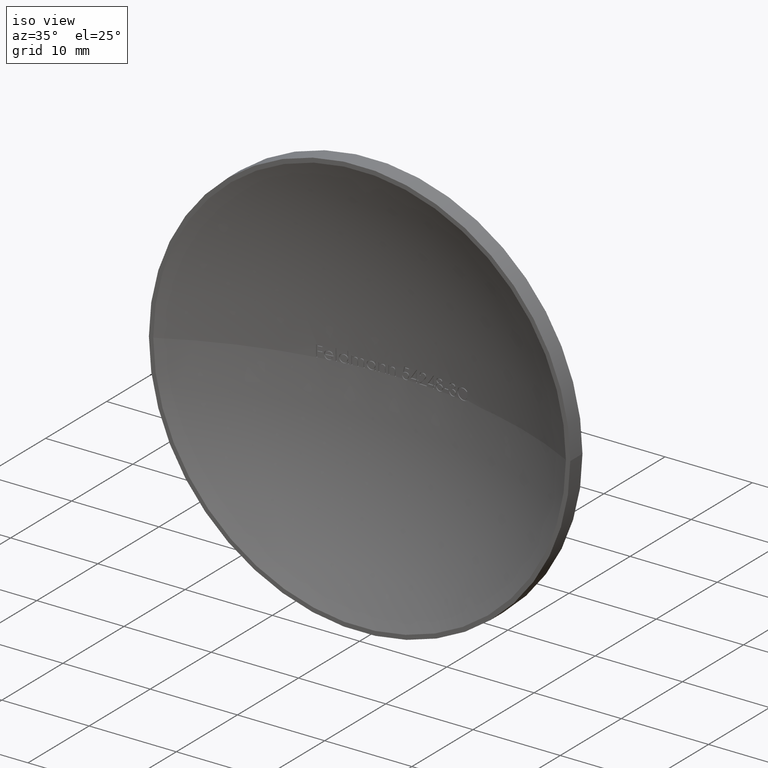
[diagram: clean part render]
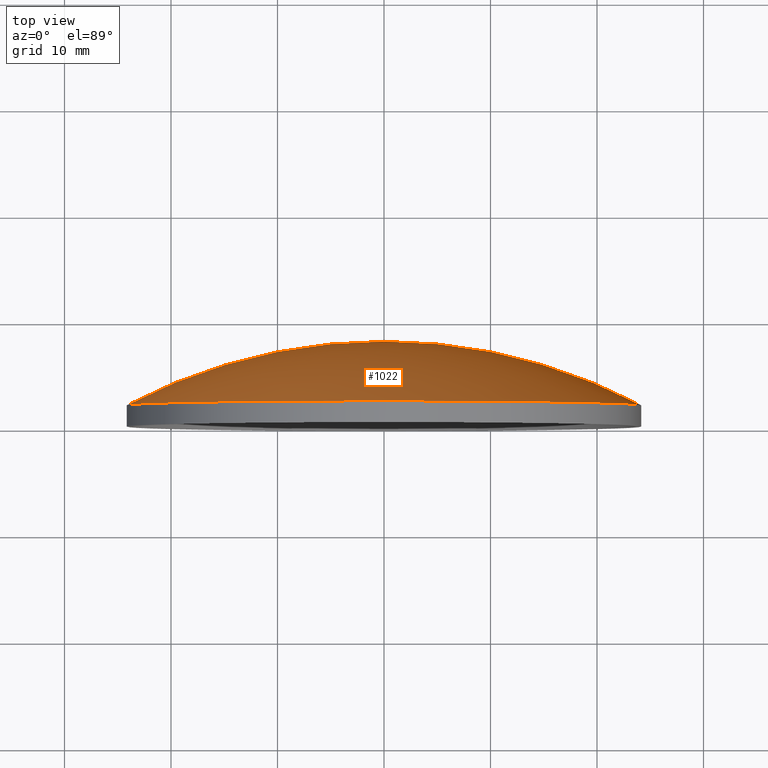
[diagram: tour spotlight — one face highlighted and labeled with its STEP entity id]
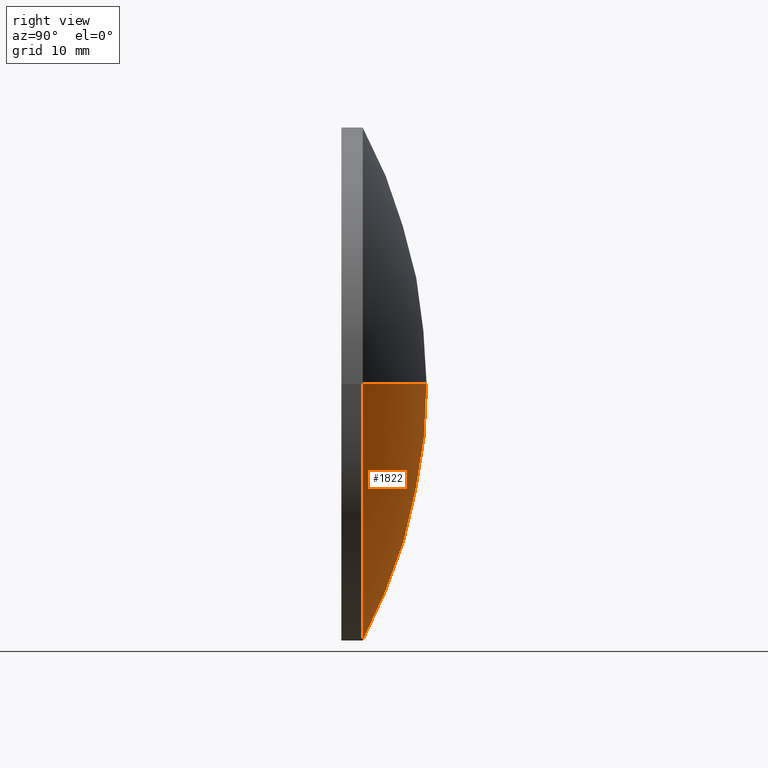
[diagram: tour spotlight — one face highlighted and labeled with its STEP entity id]
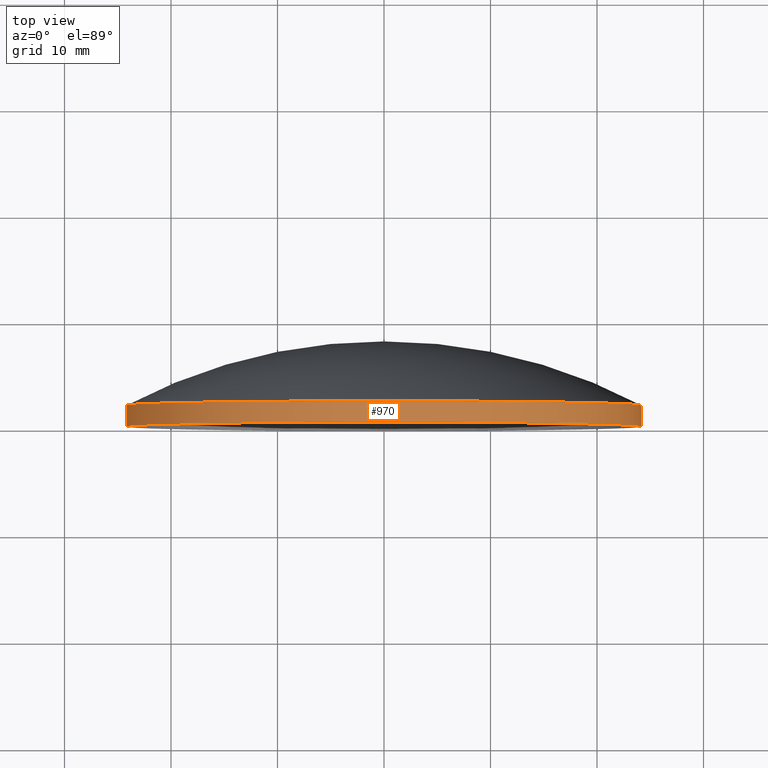
[diagram: tour spotlight — one face highlighted and labeled with its STEP entity id]
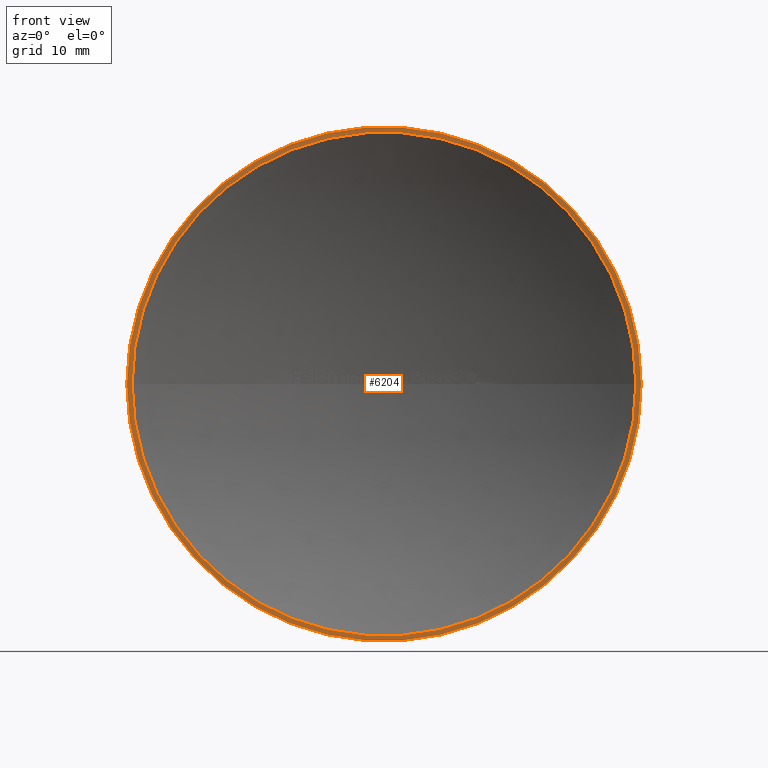
[diagram: tour spotlight — one face highlighted and labeled with its STEP entity id]
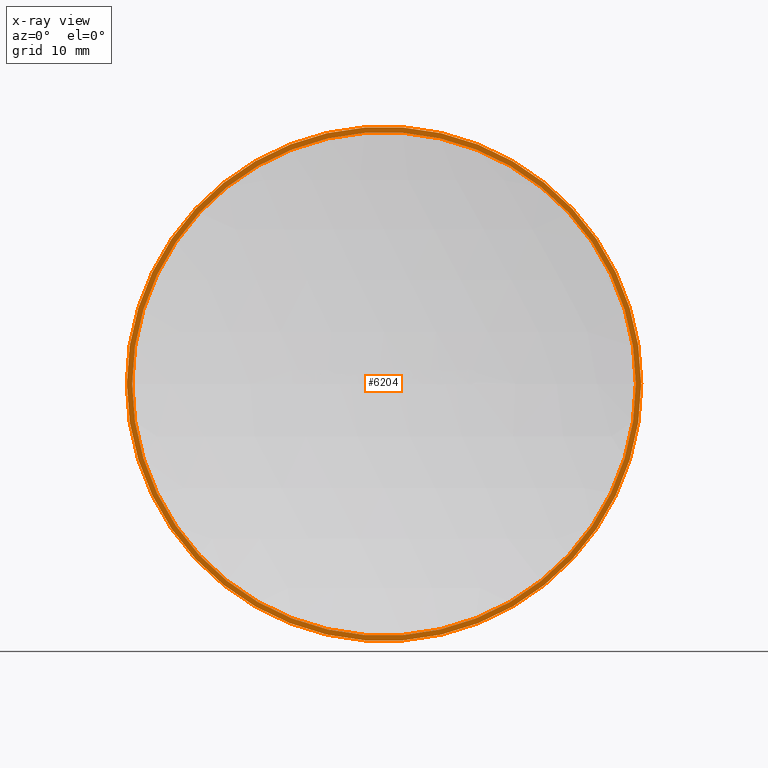
[diagram: x-ray of the same camera — body ghosted, this tour face saturated]
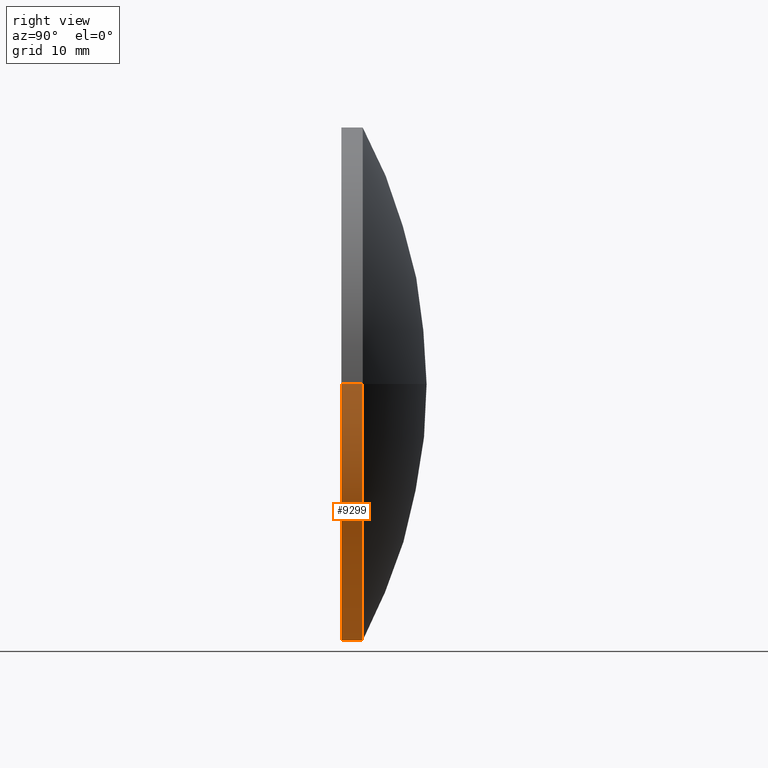
[diagram: tour spotlight — one face highlighted and labeled with its STEP entity id]
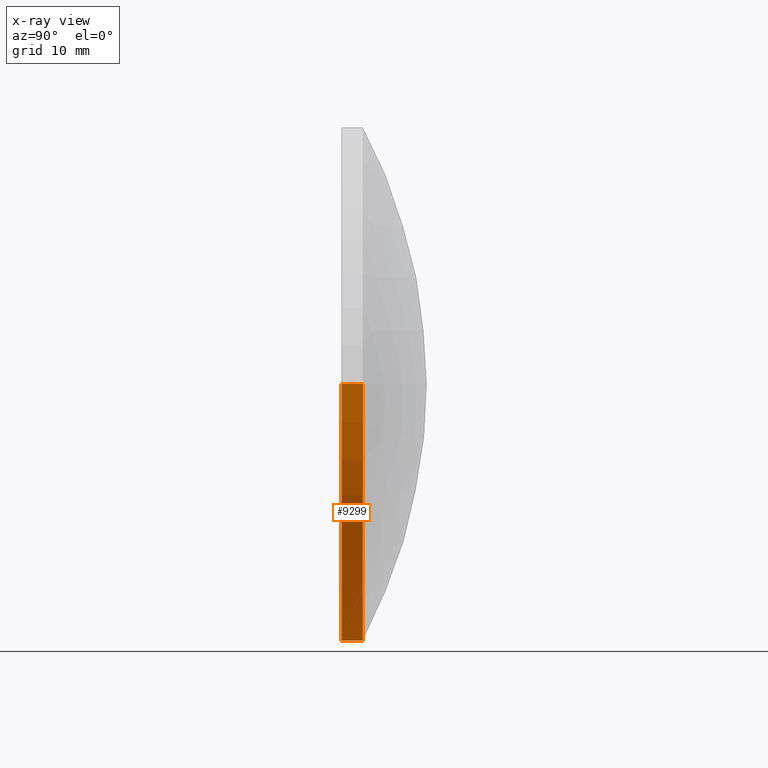
[diagram: x-ray of the same camera — body ghosted, this tour face saturated]
A machine part: a face-by-face anatomy tour. The part has 246 B-rep faces; the first image is the clean iso view, then the 5 largest visible faces are spotlighted one at a time (largest first), each with its STEP entity span.

Face 1 — top view, entity #1022. In plain terms, the highlighted spherical surface has radius 51.6019 mm.
Definition (entity closure, byte-faithful):
#657 = VERTEX_POINT ( 'NONE', #5490 ) ;
#696 = CARTESIAN_POINT ( 'NONE',  ( 1.463868500272714700E-014, -43.60187499999997800, 0.0000000000000000000 ) ) ;
#747 = CIRCLE ( 'NONE', #12458, 51.60187499999996400 ) ;
#1022 = ADVANCED_FACE ( 'NONE', ( #2465 ), #2627, .T. ) ;
#2031 = DIRECTION ( 'NONE',  ( 0.0000000000000000000, 0.0000000000000000000, -1.000000000000000000 ) ) ;
#2076 = EDGE_LOOP ( 'NONE', ( #2993, #6109, #4486 ) ) ;
#2465 = FACE_OUTER_BOUND ( 'NONE', #2076, .T. ) ;
#2627 = SPHERICAL_SURFACE ( 'NONE', #4551, 51.60187499999996400 ) ;
#2898 = DIRECTION ( 'NONE',  ( -7.319342501363578300E-015, -1.000000000000000000, -0.0000000000000000000 ) ) ;
#2988 = DIRECTION ( 'NONE',  ( 1.000000000000000000, -7.261369297355776100E-015, 0.0000000000000000000 ) ) ;
#2993 = ORIENTED_EDGE ( 'NONE', *, *, #5175, .F. ) ;
#3506 = CIRCLE ( 'NONE', #7428, 51.60187499999996400 ) ;
#4032 = CARTESIAN_POINT ( 'NONE',  ( -2.927737000545303800E-014, 2.000000000000164800, 0.0000000000000000000 ) ) ;
#4486 = ORIENTED_EDGE ( 'NONE', *, *, #5985, .F. ) ;
#4551 = AXIS2_PLACEMENT_3D ( 'NONE', #10020, #11043, #2988 ) ;
#4948 = CARTESIAN_POINT ( 'NONE',  ( 3.954901853927152000E-013, 7.999999999999986700, 0.0000000000000000000 ) ) ;
#5175 = EDGE_CURVE ( 'NONE', #7676, #6218, #3506, .T. ) ;
#5293 = CARTESIAN_POINT ( 'NONE',  ( 24.15000000000000600, 1.999999999999988000, 0.0000000000000000000 ) ) ;
#5490 = CARTESIAN_POINT ( 'NONE',  ( -24.15000000000005900, 2.000000000000341900, 2.957522019940862300E-015 ) ) ;
#5985 = EDGE_CURVE ( 'NONE', #6218, #657, #7991, .T. ) ;
#6109 = ORIENTED_EDGE ( 'NONE', *, *, #8429, .T. ) ;
#6218 = VERTEX_POINT ( 'NONE', #5293 ) ;
#7428 = AXIS2_PLACEMENT_3D ( 'NONE', #9802, #2031, #11893 ) ;
#7509 = DIRECTION ( 'NONE',  ( 1.224646799147353200E-016, -8.963609366158087900E-031, 1.000000000000000000 ) ) ;
#7676 = VERTEX_POINT ( 'NONE', #4948 ) ;
#7680 = DIRECTION ( 'NONE',  ( 1.000000000000000000, 0.0000000000000000000, -1.224646799147353200E-016 ) ) ;
#7991 = CIRCLE ( 'NONE', #11175, 24.15000000000003400 ) ;
#8429 = EDGE_CURVE ( 'NONE', #7676, #657, #747, .T. ) ;
#9802 = CARTESIAN_POINT ( 'NONE',  ( 1.463868500272714700E-014, -43.60187499999997800, 0.0000000000000000000 ) ) ;
#10020 = CARTESIAN_POINT ( 'NONE',  ( 1.463868500272714700E-014, -43.60187499999997800, 0.0000000000000000000 ) ) ;
#11043 = DIRECTION ( 'NONE',  ( -0.0000000000000000000, 0.0000000000000000000, 1.000000000000000000 ) ) ;
#11175 = AXIS2_PLACEMENT_3D ( 'NONE', #4032, #2898, #11998 ) ;
#11893 = DIRECTION ( 'NONE',  ( -1.000000000000000000, 0.0000000000000000000, 0.0000000000000000000 ) ) ;
#11998 = DIRECTION ( 'NONE',  ( 1.000000000000000000, -7.326782383007622800E-015, 0.0000000000000000000 ) ) ;
#12458 = AXIS2_PLACEMENT_3D ( 'NONE', #696, #7509, #7680 ) ;

Face 2 — right view, entity #1822. In plain terms, the highlighted spherical surface has radius 51.6019 mm.
Definition (entity closure, byte-faithful):
#163 = CARTESIAN_POINT ( 'NONE',  ( 1.463868500272714700E-014, -43.60187499999997800, 0.0000000000000000000 ) ) ;
#570 = SPHERICAL_SURFACE ( 'NONE', #2225, 51.60187499999996400 ) ;
#657 = VERTEX_POINT ( 'NONE', #5490 ) ;
#696 = CARTESIAN_POINT ( 'NONE',  ( 1.463868500272714700E-014, -43.60187499999997800, 0.0000000000000000000 ) ) ;
#747 = CIRCLE ( 'NONE', #12458, 51.60187499999996400 ) ;
#1370 = AXIS2_PLACEMENT_3D ( 'NONE', #9729, #7761, #3843 ) ;
#1822 = ADVANCED_FACE ( 'NONE', ( #8822 ), #570, .T. ) ;
#2031 = DIRECTION ( 'NONE',  ( 0.0000000000000000000, 0.0000000000000000000, -1.000000000000000000 ) ) ;
#2225 = AXIS2_PLACEMENT_3D ( 'NONE', #163, #12114, #5180 ) ;
#3506 = CIRCLE ( 'NONE', #7428, 51.60187499999996400 ) ;
#3666 = EDGE_LOOP ( 'NONE', ( #6014, #12258, #4344 ) ) ;
#3843 = DIRECTION ( 'NONE',  ( 1.000000000000000000, -7.326782383007622800E-015, 0.0000000000000000000 ) ) ;
#4344 = ORIENTED_EDGE ( 'NONE', *, *, #10722, .F. ) ;
#4948 = CARTESIAN_POINT ( 'NONE',  ( 3.954901853927152000E-013, 7.999999999999986700, 0.0000000000000000000 ) ) ;
#5175 = EDGE_CURVE ( 'NONE', #7676, #6218, #3506, .T. ) ;
#5180 = DIRECTION ( 'NONE',  ( 1.000000000000000000, -7.261369297355776100E-015, 0.0000000000000000000 ) ) ;
#5293 = CARTESIAN_POINT ( 'NONE',  ( 24.15000000000000600, 1.999999999999988000, 0.0000000000000000000 ) ) ;
#5490 = CARTESIAN_POINT ( 'NONE',  ( -24.15000000000005900, 2.000000000000341900, 2.957522019940862300E-015 ) ) ;
#6014 = ORIENTED_EDGE ( 'NONE', *, *, #8429, .F. ) ;
#6218 = VERTEX_POINT ( 'NONE', #5293 ) ;
#7428 = AXIS2_PLACEMENT_3D ( 'NONE', #9802, #2031, #11893 ) ;
#7509 = DIRECTION ( 'NONE',  ( 1.224646799147353200E-016, -8.963609366158087900E-031, 1.000000000000000000 ) ) ;
#7676 = VERTEX_POINT ( 'NONE', #4948 ) ;
#7680 = DIRECTION ( 'NONE',  ( 1.000000000000000000, 0.0000000000000000000, -1.224646799147353200E-016 ) ) ;
#7761 = DIRECTION ( 'NONE',  ( -7.319342501363578300E-015, -1.000000000000000000, -0.0000000000000000000 ) ) ;
#8429 = EDGE_CURVE ( 'NONE', #7676, #657, #747, .T. ) ;
#8822 = FACE_OUTER_BOUND ( 'NONE', #3666, .T. ) ;
#8972 = CIRCLE ( 'NONE', #1370, 24.15000000000003400 ) ;
#9729 = CARTESIAN_POINT ( 'NONE',  ( -2.927737000545303800E-014, 2.000000000000164800, 0.0000000000000000000 ) ) ;
#9802 = CARTESIAN_POINT ( 'NONE',  ( 1.463868500272714700E-014, -43.60187499999997800, 0.0000000000000000000 ) ) ;
#10722 = EDGE_CURVE ( 'NONE', #657, #6218, #8972, .T. ) ;
#11893 = DIRECTION ( 'NONE',  ( -1.000000000000000000, 0.0000000000000000000, 0.0000000000000000000 ) ) ;
#12114 = DIRECTION ( 'NONE',  ( -0.0000000000000000000, 0.0000000000000000000, 1.000000000000000000 ) ) ;
#12258 = ORIENTED_EDGE ( 'NONE', *, *, #5175, .T. ) ;
#12458 = AXIS2_PLACEMENT_3D ( 'NONE', #696, #7509, #7680 ) ;

Face 3 — top view, entity #970. In plain terms, the highlighted cylindrical surface (partial cylindrical patch) has radius 24.15 mm, axis along (-0, -1, -0).
Definition (entity closure, byte-faithful):
#83 = DIRECTION ( 'NONE',  ( -7.319342501363578300E-015, -1.000000000000000000, -0.0000000000000000000 ) ) ;
#113 = AXIS2_PLACEMENT_3D ( 'NONE', #4947, #4078, #5025 ) ;
#657 = VERTEX_POINT ( 'NONE', #5490 ) ;
#970 = ADVANCED_FACE ( 'NONE', ( #10394 ), #7764, .T. ) ;
#1500 = ORIENTED_EDGE ( 'NONE', *, *, #5985, .T. ) ;
#2898 = DIRECTION ( 'NONE',  ( -7.319342501363578300E-015, -1.000000000000000000, -0.0000000000000000000 ) ) ;
#2934 = CARTESIAN_POINT ( 'NONE',  ( 24.15000000000004100, 5.999999999999814400, 0.0000000000000000000 ) ) ;
#3404 = VERTEX_POINT ( 'NONE', #5474 ) ;
#4032 = CARTESIAN_POINT ( 'NONE',  ( -2.927737000545303800E-014, 2.000000000000164800, 0.0000000000000000000 ) ) ;
#4078 = DIRECTION ( 'NONE',  ( -7.319342501363578300E-015, -1.000000000000000000, -0.0000000000000000000 ) ) ;
#4529 = CARTESIAN_POINT ( 'NONE',  ( 24.15000000000000200, -3.289773810250057000E-015, 0.0000000000000000000 ) ) ;
#4625 = EDGE_CURVE ( 'NONE', #6218, #9492, #12703, .T. ) ;
#4720 = CARTESIAN_POINT ( 'NONE',  ( -24.15000000000004100, 6.000000000000168800, 2.957522019940862700E-015 ) ) ;
#4947 = CARTESIAN_POINT ( 'NONE',  ( 0.0000000000000000000, 5.999999999999991100, 0.0000000000000000000 ) ) ;
#5025 = DIRECTION ( 'NONE',  ( 1.000000000000000000, -7.326782383007619600E-015, 0.0000000000000000000 ) ) ;
#5293 = CARTESIAN_POINT ( 'NONE',  ( 24.15000000000000600, 1.999999999999988000, 0.0000000000000000000 ) ) ;
#5474 = CARTESIAN_POINT ( 'NONE',  ( -24.15000000000009100, 3.502344690056114000E-013, 2.957522019940864600E-015 ) ) ;
#5490 = CARTESIAN_POINT ( 'NONE',  ( -24.15000000000005900, 2.000000000000341900, 2.957522019940862300E-015 ) ) ;
#5768 = VECTOR ( 'NONE', #6731, 1000.000000000000000 ) ;
#5985 = EDGE_CURVE ( 'NONE', #6218, #657, #7991, .T. ) ;
#6218 = VERTEX_POINT ( 'NONE', #5293 ) ;
#6561 = ORIENTED_EDGE ( 'NONE', *, *, #8270, .F. ) ;
#6731 = DIRECTION ( 'NONE',  ( -7.319342501363578300E-015, -1.000000000000000000, -0.0000000000000000000 ) ) ;
#7764 = CYLINDRICAL_SURFACE ( 'NONE', #113, 24.15000000000004100 ) ;
#7991 = CIRCLE ( 'NONE', #11175, 24.15000000000003400 ) ;
#8107 = EDGE_LOOP ( 'NONE', ( #1500, #11453, #6561, #8944 ) ) ;
#8147 = CARTESIAN_POINT ( 'NONE',  ( -4.391605500818014100E-014, 1.734723475976807100E-013, 0.0000000000000000000 ) ) ;
#8270 = EDGE_CURVE ( 'NONE', #9492, #3404, #9618, .T. ) ;
#8497 = EDGE_CURVE ( 'NONE', #657, #3404, #12129, .T. ) ;
#8913 = AXIS2_PLACEMENT_3D ( 'NONE', #8147, #83, #11117 ) ;
#8944 = ORIENTED_EDGE ( 'NONE', *, *, #4625, .F. ) ;
#9492 = VERTEX_POINT ( 'NONE', #4529 ) ;
#9618 = CIRCLE ( 'NONE', #8913, 24.15000000000004500 ) ;
#9844 = VECTOR ( 'NONE', #11875, 1000.000000000000000 ) ;
#10394 = FACE_OUTER_BOUND ( 'NONE', #8107, .T. ) ;
#11117 = DIRECTION ( 'NONE',  ( 1.000000000000000000, -7.319342501363579900E-015, 0.0000000000000000000 ) ) ;
#11175 = AXIS2_PLACEMENT_3D ( 'NONE', #4032, #2898, #11998 ) ;
#11453 = ORIENTED_EDGE ( 'NONE', *, *, #8497, .T. ) ;
#11875 = DIRECTION ( 'NONE',  ( -7.319342501363578300E-015, -1.000000000000000000, -0.0000000000000000000 ) ) ;
#11998 = DIRECTION ( 'NONE',  ( 1.000000000000000000, -7.326782383007622800E-015, 0.0000000000000000000 ) ) ;
#12129 = LINE ( 'NONE', #4720, #5768 ) ;
#12703 = LINE ( 'NONE', #2934, #9844 ) ;

Face 4 — front view, entity #6204. An x-ray twin of the same camera follows (body ghosted, this face saturated) — the face is partly hidden behind the body. In plain terms, the highlighted planar face has unit normal (-0, -1, 0).
Definition (entity closure, byte-faithful):
#83 = DIRECTION ( 'NONE',  ( -7.319342501363578300E-015, -1.000000000000000000, -0.0000000000000000000 ) ) ;
#534 = CARTESIAN_POINT ( 'NONE',  ( 23.64788574058999200, -6.746207689312076300E-015, -2.896030757881546500E-015 ) ) ;
#1119 = CARTESIAN_POINT ( 'NONE',  ( -4.391605500818014100E-014, 1.734723475976807100E-013, 0.0000000000000000000 ) ) ;
#1124 = FACE_OUTER_BOUND ( 'NONE', #2931, .T. ) ;
#1675 = VERTEX_POINT ( 'NONE', #8766 ) ;
#1744 = EDGE_LOOP ( 'NONE', ( #10831, #6296 ) ) ;
#1810 = AXIS2_PLACEMENT_3D ( 'NONE', #4264, #10297, #6276 ) ;
#2064 = FACE_BOUND ( 'NONE', #1744, .T. ) ;
#2510 = DIRECTION ( 'NONE',  ( -7.319342501363578300E-015, -1.000000000000000000, 0.0000000000000000000 ) ) ;
#2931 = EDGE_LOOP ( 'NONE', ( #12451, #4711 ) ) ;
#3404 = VERTEX_POINT ( 'NONE', #5474 ) ;
#3501 = AXIS2_PLACEMENT_3D ( 'NONE', #10980, #4923, #11910 ) ;
#3601 = EDGE_CURVE ( 'NONE', #6906, #1675, #8025, .T. ) ;
#3865 = EDGE_CURVE ( 'NONE', #3404, #9492, #6013, .T. ) ;
#4264 = CARTESIAN_POINT ( 'NONE',  ( -4.391605500818018500E-014, 1.665334536937734800E-013, 0.0000000000000000000 ) ) ;
#4529 = CARTESIAN_POINT ( 'NONE',  ( 24.15000000000000200, -3.289773810250057000E-015, 0.0000000000000000000 ) ) ;
#4711 = ORIENTED_EDGE ( 'NONE', *, *, #3865, .T. ) ;
#4923 = DIRECTION ( 'NONE',  ( -7.319342501363578300E-015, -1.000000000000000000, -0.0000000000000000000 ) ) ;
#5153 = AXIS2_PLACEMENT_3D ( 'NONE', #7381, #2510, #6307 ) ;
#5474 = CARTESIAN_POINT ( 'NONE',  ( -24.15000000000009100, 3.502344690056114000E-013, 2.957522019940864600E-015 ) ) ;
#6013 = CIRCLE ( 'NONE', #9305, 24.15000000000004500 ) ;
#6204 = ADVANCED_FACE ( 'NONE', ( #1124, #2064 ), #7472, .T. ) ;
#6276 = DIRECTION ( 'NONE',  ( 1.000000000000000000, -7.319342501363578300E-015, 0.0000000000000000000 ) ) ;
#6296 = ORIENTED_EDGE ( 'NONE', *, *, #3601, .F. ) ;
#6307 = DIRECTION ( 'NONE',  ( 1.000000000000000000, -7.319342501363578300E-015, 0.0000000000000000000 ) ) ;
#6889 = EDGE_CURVE ( 'NONE', #1675, #6906, #9629, .T. ) ;
#6906 = VERTEX_POINT ( 'NONE', #534 ) ;
#7381 = CARTESIAN_POINT ( 'NONE',  ( 24.15000000000000200, -6.938861931537636400E-015, 0.0000000000000000000 ) ) ;
#7472 = PLANE ( 'NONE',  #5153 ) ;
#8025 = CIRCLE ( 'NONE', #3501, 23.64788574059004100 ) ;
#8147 = CARTESIAN_POINT ( 'NONE',  ( -4.391605500818014100E-014, 1.734723475976807100E-013, 0.0000000000000000000 ) ) ;
#8270 = EDGE_CURVE ( 'NONE', #9492, #3404, #9618, .T. ) ;
#8766 = CARTESIAN_POINT ( 'NONE',  ( -23.64788574058970700, 3.398131150768590300E-013, 0.0000000000000000000 ) ) ;
#8913 = AXIS2_PLACEMENT_3D ( 'NONE', #8147, #83, #11117 ) ;
#9254 = DIRECTION ( 'NONE',  ( 1.000000000000000000, -7.319342501363579900E-015, 0.0000000000000000000 ) ) ;
#9305 = AXIS2_PLACEMENT_3D ( 'NONE', #1119, #10261, #9254 ) ;
#9492 = VERTEX_POINT ( 'NONE', #4529 ) ;
#9618 = CIRCLE ( 'NONE', #8913, 24.15000000000004500 ) ;
#9629 = CIRCLE ( 'NONE', #1810, 23.64788574059004100 ) ;
#10261 = DIRECTION ( 'NONE',  ( -7.319342501363578300E-015, -1.000000000000000000, -0.0000000000000000000 ) ) ;
#10297 = DIRECTION ( 'NONE',  ( -7.319342501363578300E-015, -1.000000000000000000, -0.0000000000000000000 ) ) ;
#10831 = ORIENTED_EDGE ( 'NONE', *, *, #6889, .F. ) ;
#10980 = CARTESIAN_POINT ( 'NONE',  ( -4.391605500818018500E-014, 1.665334536937734800E-013, 0.0000000000000000000 ) ) ;
#11117 = DIRECTION ( 'NONE',  ( 1.000000000000000000, -7.319342501363579900E-015, 0.0000000000000000000 ) ) ;
#11910 = DIRECTION ( 'NONE',  ( 1.000000000000000000, -7.319342501363578300E-015, 0.0000000000000000000 ) ) ;
#12451 = ORIENTED_EDGE ( 'NONE', *, *, #8270, .T. ) ;

Face 5 — right view, entity #9299. An x-ray twin of the same camera follows (body ghosted, this face saturated) — the face is partly hidden behind the body. In plain terms, the highlighted cylindrical surface (partial cylindrical patch) has radius 24.15 mm, axis along (-0, -1, -0).
Definition (entity closure, byte-faithful):
#344 = ORIENTED_EDGE ( 'NONE', *, *, #8497, .F. ) ;
#657 = VERTEX_POINT ( 'NONE', #5490 ) ;
#1119 = CARTESIAN_POINT ( 'NONE',  ( -4.391605500818014100E-014, 1.734723475976807100E-013, 0.0000000000000000000 ) ) ;
#1370 = AXIS2_PLACEMENT_3D ( 'NONE', #9729, #7761, #3843 ) ;
#2794 = CYLINDRICAL_SURFACE ( 'NONE', #7276, 24.15000000000004100 ) ;
#2934 = CARTESIAN_POINT ( 'NONE',  ( 24.15000000000004100, 5.999999999999814400, 0.0000000000000000000 ) ) ;
#3404 = VERTEX_POINT ( 'NONE', #5474 ) ;
#3843 = DIRECTION ( 'NONE',  ( 1.000000000000000000, -7.326782383007622800E-015, 0.0000000000000000000 ) ) ;
#3865 = EDGE_CURVE ( 'NONE', #3404, #9492, #6013, .T. ) ;
#4529 = CARTESIAN_POINT ( 'NONE',  ( 24.15000000000000200, -3.289773810250057000E-015, 0.0000000000000000000 ) ) ;
#4625 = EDGE_CURVE ( 'NONE', #6218, #9492, #12703, .T. ) ;
#4720 = CARTESIAN_POINT ( 'NONE',  ( -24.15000000000004100, 6.000000000000168800, 2.957522019940862700E-015 ) ) ;
#5293 = CARTESIAN_POINT ( 'NONE',  ( 24.15000000000000600, 1.999999999999988000, 0.0000000000000000000 ) ) ;
#5474 = CARTESIAN_POINT ( 'NONE',  ( -24.15000000000009100, 3.502344690056114000E-013, 2.957522019940864600E-015 ) ) ;
#5490 = CARTESIAN_POINT ( 'NONE',  ( -24.15000000000005900, 2.000000000000341900, 2.957522019940862300E-015 ) ) ;
#5767 = ORIENTED_EDGE ( 'NONE', *, *, #10722, .T. ) ;
#5768 = VECTOR ( 'NONE', #6731, 1000.000000000000000 ) ;
#6013 = CIRCLE ( 'NONE', #9305, 24.15000000000004500 ) ;
#6218 = VERTEX_POINT ( 'NONE', #5293 ) ;
#6731 = DIRECTION ( 'NONE',  ( -7.319342501363578300E-015, -1.000000000000000000, -0.0000000000000000000 ) ) ;
#7276 = AXIS2_PLACEMENT_3D ( 'NONE', #12747, #7906, #12912 ) ;
#7761 = DIRECTION ( 'NONE',  ( -7.319342501363578300E-015, -1.000000000000000000, -0.0000000000000000000 ) ) ;
#7906 = DIRECTION ( 'NONE',  ( -7.319342501363578300E-015, -1.000000000000000000, -0.0000000000000000000 ) ) ;
#8486 = ORIENTED_EDGE ( 'NONE', *, *, #4625, .T. ) ;
#8497 = EDGE_CURVE ( 'NONE', #657, #3404, #12129, .T. ) ;
#8506 = ORIENTED_EDGE ( 'NONE', *, *, #3865, .F. ) ;
#8972 = CIRCLE ( 'NONE', #1370, 24.15000000000003400 ) ;
#9254 = DIRECTION ( 'NONE',  ( 1.000000000000000000, -7.319342501363579900E-015, 0.0000000000000000000 ) ) ;
#9299 = ADVANCED_FACE ( 'NONE', ( #10717 ), #2794, .T. ) ;
#9305 = AXIS2_PLACEMENT_3D ( 'NONE', #1119, #10261, #9254 ) ;
#9492 = VERTEX_POINT ( 'NONE', #4529 ) ;
#9729 = CARTESIAN_POINT ( 'NONE',  ( -2.927737000545303800E-014, 2.000000000000164800, 0.0000000000000000000 ) ) ;
#9844 = VECTOR ( 'NONE', #11875, 1000.000000000000000 ) ;
#9998 = EDGE_LOOP ( 'NONE', ( #344, #5767, #8486, #8506 ) ) ;
#10261 = DIRECTION ( 'NONE',  ( -7.319342501363578300E-015, -1.000000000000000000, -0.0000000000000000000 ) ) ;
#10717 = FACE_OUTER_BOUND ( 'NONE', #9998, .T. ) ;
#10722 = EDGE_CURVE ( 'NONE', #657, #6218, #8972, .T. ) ;
#11875 = DIRECTION ( 'NONE',  ( -7.319342501363578300E-015, -1.000000000000000000, -0.0000000000000000000 ) ) ;
#12129 = LINE ( 'NONE', #4720, #5768 ) ;
#12703 = LINE ( 'NONE', #2934, #9844 ) ;
#12747 = CARTESIAN_POINT ( 'NONE',  ( 0.0000000000000000000, 5.999999999999991100, 0.0000000000000000000 ) ) ;
#12912 = DIRECTION ( 'NONE',  ( 1.000000000000000000, -7.326782383007619600E-015, 0.0000000000000000000 ) ) ;